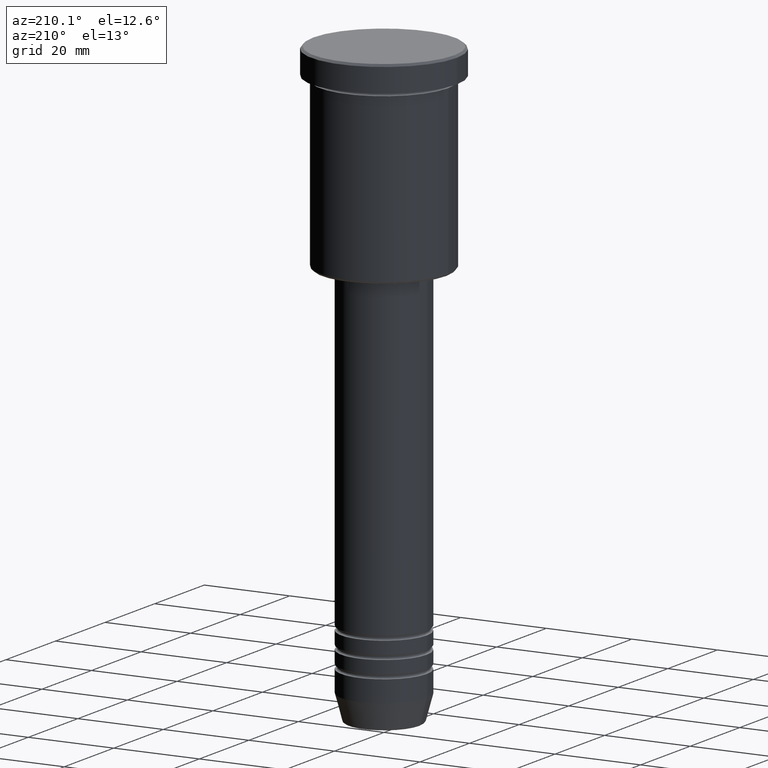
[diagram: clean part render]
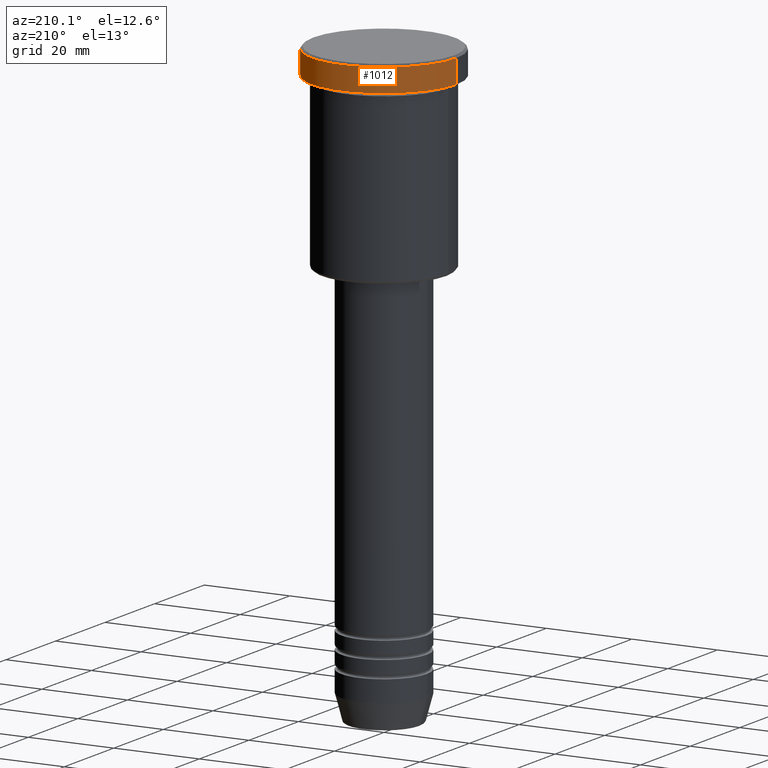
[diagram: same view with one face highlighted and labeled with its STEP entity id]
A machine part, auxiliary view. The second image highlights one B-rep face of the part: STEP entity #1012.
In plain terms, the highlighted cylindrical surface (partial cylindrical patch) has radius 17 mm, axis along (-0, -0, 1).
Its self-contained STEP definition (entity closure, byte-faithful):
#3 = ORIENTED_EDGE ( 'NONE', *, *, #848, .T. ) ;
#4 = ORIENTED_EDGE ( 'NONE', *, *, #183, .T. ) ;
#49 = DIRECTION ( 'NONE',  ( 0.000000000000000000, 0.000000000000000000, -1.000000000000000000 ) ) ;
#57 = CARTESIAN_POINT ( 'NONE',  ( 0.000000000000000000, 0.000000000000000000, -5.999999999999994671 ) ) ;
#114 = EDGE_CURVE ( 'NONE', #768, #788, #623, .T. ) ;
#126 = AXIS2_PLACEMENT_3D ( 'NONE', #1094, #49, #139 ) ;
#139 = DIRECTION ( 'NONE',  ( 1.000000000000000000, 0.000000000000000000, 0.000000000000000000 ) ) ;
#183 = EDGE_CURVE ( 'NONE', #822, #411, #444, .T. ) ;
#184 = CIRCLE ( 'NONE', #126, 17.00000000000000000 ) ;
#186 = CIRCLE ( 'NONE', #513, 17.00000000000000000 ) ;
#248 = CARTESIAN_POINT ( 'NONE',  ( 17.00000000000000000, 0.000000000000000000, 0.000000000000000000 ) ) ;
#271 = CYLINDRICAL_SURFACE ( 'NONE', #601, 17.00000000000000000 ) ;
#312 = EDGE_LOOP ( 'NONE', ( #3, #4, #917, #841 ) ) ;
#340 = VECTOR ( 'NONE', #443, 1000.000000000000000 ) ;
#353 = DIRECTION ( 'NONE',  ( -0.000000000000000000, -0.000000000000000000, 1.000000000000000000 ) ) ;
#354 = CARTESIAN_POINT ( 'NONE',  ( 17.00000000000000000, 0.000000000000000000, -5.999999999999994671 ) ) ;
#387 = EDGE_CURVE ( 'NONE', #411, #788, #184, .T. ) ;
#411 = VERTEX_POINT ( 'NONE', #1047 ) ;
#443 = DIRECTION ( 'NONE',  ( -0.000000000000000000, -0.000000000000000000, 1.000000000000000000 ) ) ;
#444 = LINE ( 'NONE', #614, #510 ) ;
#510 = VECTOR ( 'NONE', #975, 1000.000000000000000 ) ;
#513 = AXIS2_PLACEMENT_3D ( 'NONE', #57, #571, #778 ) ;
#540 = DIRECTION ( 'NONE',  ( 1.000000000000000000, 0.000000000000000000, 0.000000000000000000 ) ) ;
#571 = DIRECTION ( 'NONE',  ( -0.000000000000000000, -0.000000000000000000, 1.000000000000000000 ) ) ;
#601 = AXIS2_PLACEMENT_3D ( 'NONE', #996, #353, #540 ) ;
#614 = CARTESIAN_POINT ( 'NONE',  ( -17.00000000000000000, 2.081899558550500280E-15, 0.000000000000000000 ) ) ;
#623 = LINE ( 'NONE', #248, #340 ) ;
#768 = VERTEX_POINT ( 'NONE', #354 ) ;
#778 = DIRECTION ( 'NONE',  ( 1.000000000000000000, 0.000000000000000000, 0.000000000000000000 ) ) ;
#788 = VERTEX_POINT ( 'NONE', #803 ) ;
#791 = FACE_OUTER_BOUND ( 'NONE', #312, .T. ) ;
#803 = CARTESIAN_POINT ( 'NONE',  ( 17.00000000000000000, 0.000000000000000000, -0.5000000000000350830 ) ) ;
#822 = VERTEX_POINT ( 'NONE', #1152 ) ;
#841 = ORIENTED_EDGE ( 'NONE', *, *, #114, .F. ) ;
#848 = EDGE_CURVE ( 'NONE', #768, #822, #186, .T. ) ;
#917 = ORIENTED_EDGE ( 'NONE', *, *, #387, .T. ) ;
#975 = DIRECTION ( 'NONE',  ( -0.000000000000000000, -0.000000000000000000, 1.000000000000000000 ) ) ;
#996 = CARTESIAN_POINT ( 'NONE',  ( 0.000000000000000000, 0.000000000000000000, 0.000000000000000000 ) ) ;
#1012 = ADVANCED_FACE ( 'NONE', ( #791 ), #271, .T. ) ;
#1047 = CARTESIAN_POINT ( 'NONE',  ( -17.00000000000000000, 2.081899558550500280E-15, -0.5000000000000350830 ) ) ;
#1094 = CARTESIAN_POINT ( 'NONE',  ( 0.000000000000000000, 0.000000000000000000, -0.5000000000000350830 ) ) ;
#1152 = CARTESIAN_POINT ( 'NONE',  ( -17.00000000000000000, 2.081899558550500280E-15, -5.999999999999994671 ) ) ;